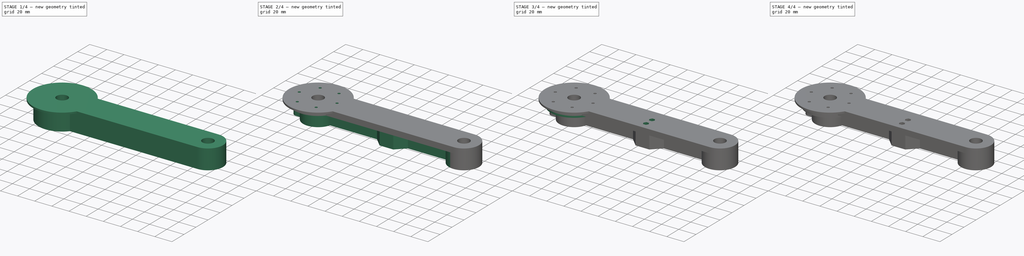
[diagram: build sequence overview — one tinted view per stage of 4, left to right]
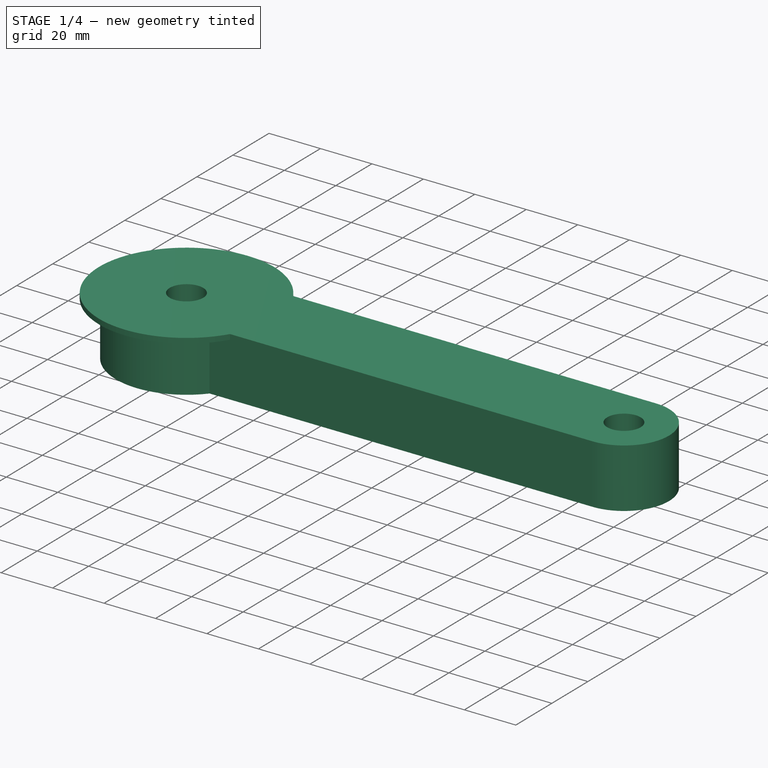
[diagram: stage 1 of 4 — iso view after this stage's code; geometry added in this stage tinted green]
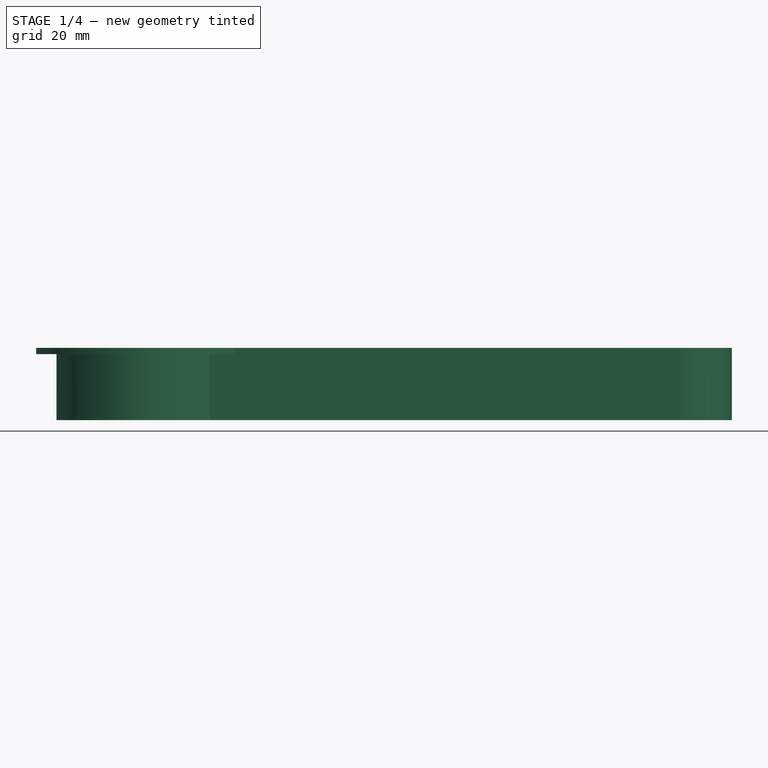
[diagram: stage 1 of 4 — front view after this stage's code; geometry added in this stage tinted green]
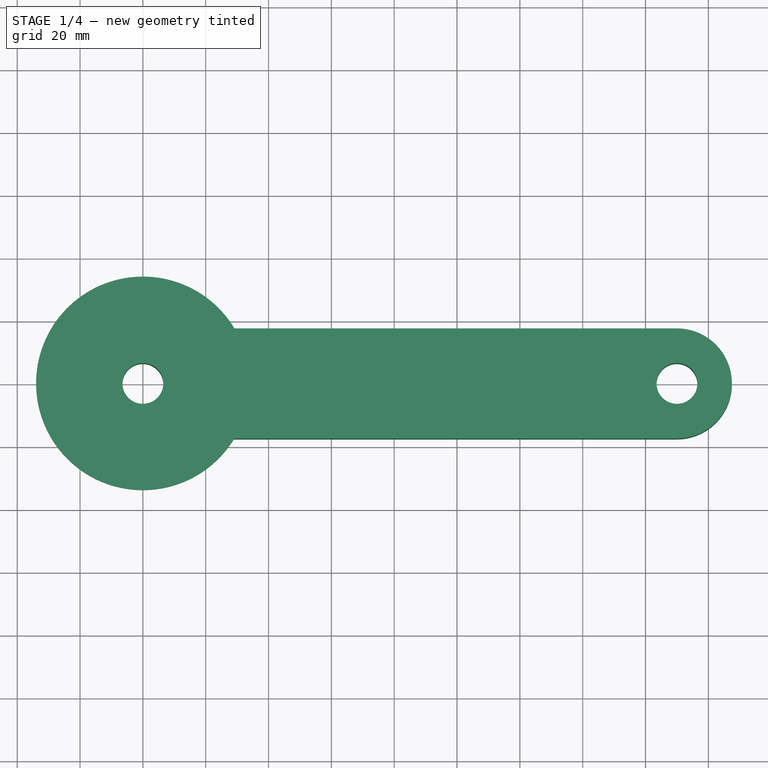
[diagram: stage 1 of 4 — top view after this stage's code; geometry added in this stage tinted green]
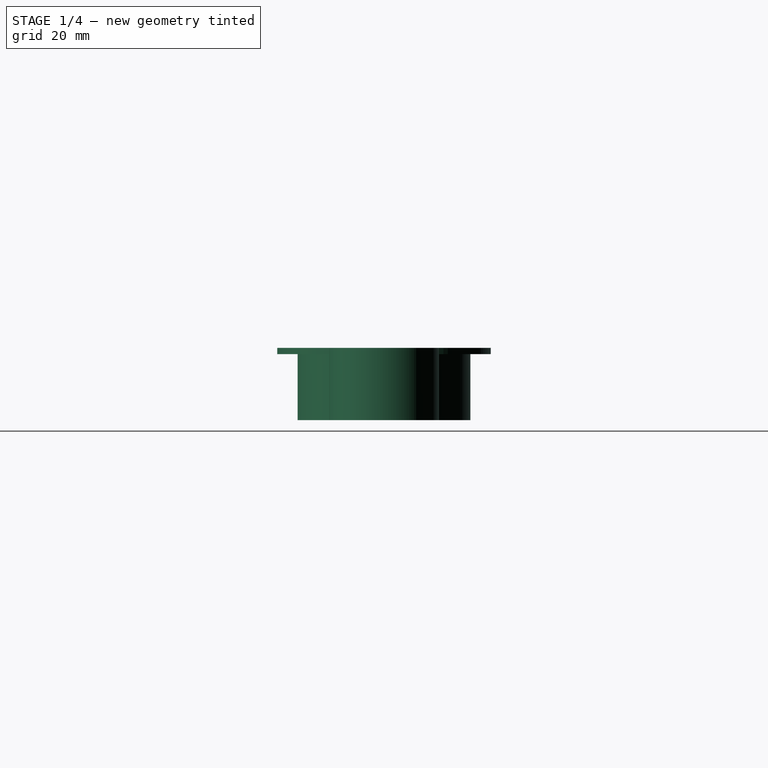
[diagram: stage 1 of 4 — right view after this stage's code; geometry added in this stage tinted green]
FCSTD DOCUMENT  (FreeCAD 0.20R29410 (Git))
Label: #11_Link1
License: All rights reserved
LicenseURL: http://en.wikipedia.org/wiki/All_rights_reserved
objects: Sketcher::SketchObject×8, PartDesign::Pocket×6, PartDesign::Pad×2, PartDesign::PolarPattern×1, PartDesign::Body×1, Part::FeaturePython×1
note: 27 computed .brp shape members not serialized (recipe doc carries the construction recipe); baked Part::Feature solids carry a one-line shape summary decoded from their .brp

FEATURE [Sketcher::SketchObject] Sketch
  FullyConstrained = true
  MapMode = 5
  Support = -> [XY_Plane]
  sketch-geometry (6):
    g0: ArcOfCircle CenterX=0 CenterY=0 CenterZ=0 NormalX=0 NormalY=0 NormalZ=1 AngleXU=0 Radius=34 StartAngle=0.540665 EndAngle=5.74252
    g1: Circle CenterX=170 CenterY=0 CenterZ=0 NormalX=0 NormalY=0 NormalZ=1 AngleXU=0 Radius=6.5
    g2: Circle CenterX=0 CenterY=0 CenterZ=0 NormalX=0 NormalY=0 NormalZ=1 AngleXU=0 Radius=6.5
    g3: ArcOfCircle CenterX=170 CenterY=0 CenterZ=0 NormalX=0 NormalY=0 NormalZ=1 AngleXU=0 Radius=17.5 StartAngle=4.71239 EndAngle=7.85398
    g4: LineSegment StartX=29.1505 StartY=-17.5 StartZ=0 EndX=170 EndY=-17.5 EndZ=0
    g5: LineSegment StartX=170 StartY=17.5 StartZ=0 EndX=29.1505 EndY=17.5 EndZ=0
  constraints (15):
    c: Coincident(g0,g-1)
    c: Diameter(g0) = 68
    c: PointOnObject(g1,g-1)
    c: Coincident(g2,g0)
    c: Diameter(g2) = 13
    c: Diameter(g1) = 13
    c: DistanceX(g0,g1) = 170
    c: Tangent(g4,g3) = -1.5708
    c: Tangent(g3,g5) = -1.5708
    c: Coincident(g3,g1)
    c: Diameter(g3) = 35
    c: Coincident(g0,g5)
    c: Coincident(g4,g0)
    c: Horizontal(g5)
    c: Horizontal(g4)
FEATURE [PartDesign::Pad] Pad
  Direction = (0,0,1)
  Length = 23
  Length2 = 10
  Profile = -> Sketch
  ReferenceAxis = -> Sketch [N_Axis]
  Type = 0
FEATURE [Sketcher::SketchObject] Sketch001
  ExternalGeometry = -> [Pad]
  FullyConstrained = true
  MapMode = 5
  Placement = pos=(0,0,0) rot=(1,0,0;3.14159rad)
  Support = -> [Pad]
  sketch-geometry (4):
    g0: ArcOfCircle CenterX=0 CenterY=0 CenterZ=0 NormalX=0 NormalY=0 NormalZ=1 AngleXU=0 Radius=27.5 StartAngle=0.689775 EndAngle=5.59341
    g1: LineSegment StartX=29.1505 StartY=17.5 StartZ=0 EndX=21.2132 EndY=17.5 EndZ=0
    g2: LineSegment StartX=29.1505 StartY=-17.5 StartZ=0 EndX=21.2132 EndY=-17.5 EndZ=0
    g3: ArcOfCircle CenterX=0 CenterY=0 CenterZ=0 NormalX=0 NormalY=0 NormalZ=1 AngleXU=0 Radius=34 StartAngle=0.540665 EndAngle=5.74252
  constraints (11):
    c: Coincident(g0,g-1)
    c: Diameter(g0) = 55
    c: Coincident(g1,g-3)
    c: Horizontal(g1)
    c: Coincident(g2,g-4)
    c: Horizontal(g2)
    c: Coincident(g0,g2)
    c: Coincident(g0,g1)
    c: Coincident(g3,g0)
    c: Coincident(g3,g2)
    c: Coincident(g3,g1)
FEATURE [PartDesign::Pocket] Pocket
  BaseFeature = -> Pad
  Direction = (0,0,1)
  Length = 21
  Length2 = 5
  Profile = -> Sketch001
  ReferenceAxis = -> Sketch001 [N_Axis]
  Type = 0
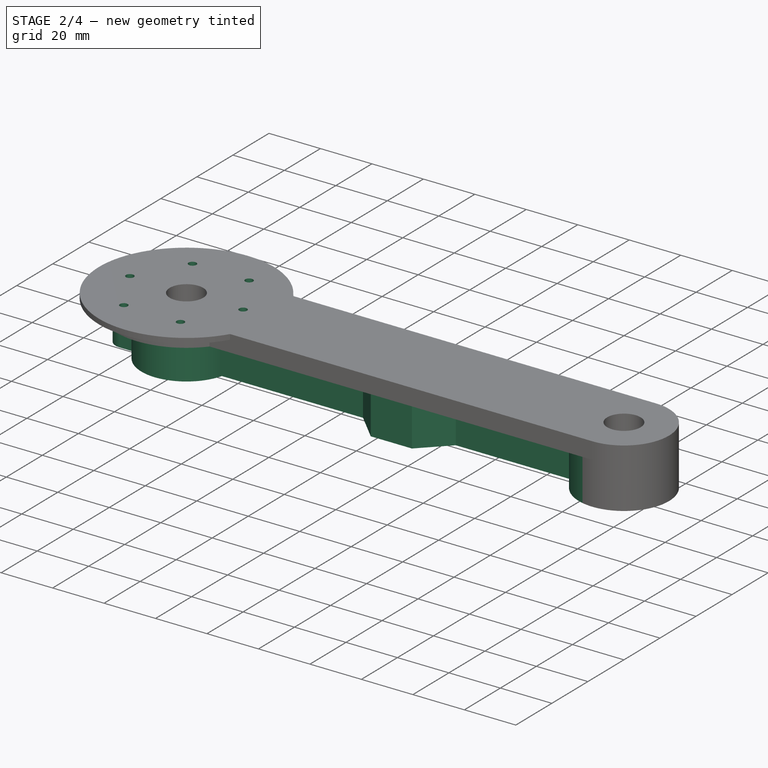
[diagram: stage 2 of 4 — iso view after this stage's code; geometry added in this stage tinted green]
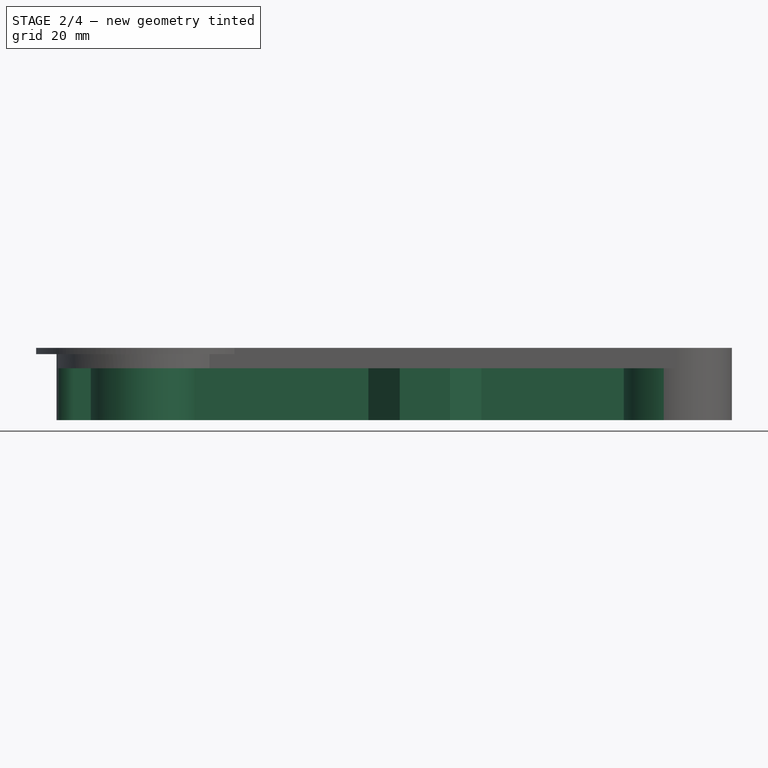
[diagram: stage 2 of 4 — front view after this stage's code; geometry added in this stage tinted green]
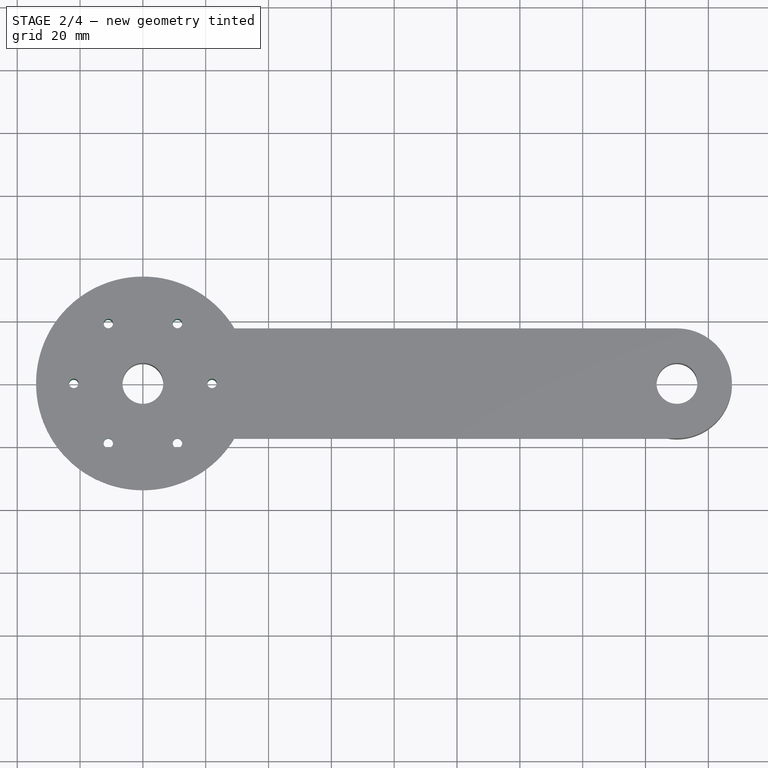
[diagram: stage 2 of 4 — top view after this stage's code; geometry added in this stage tinted green]
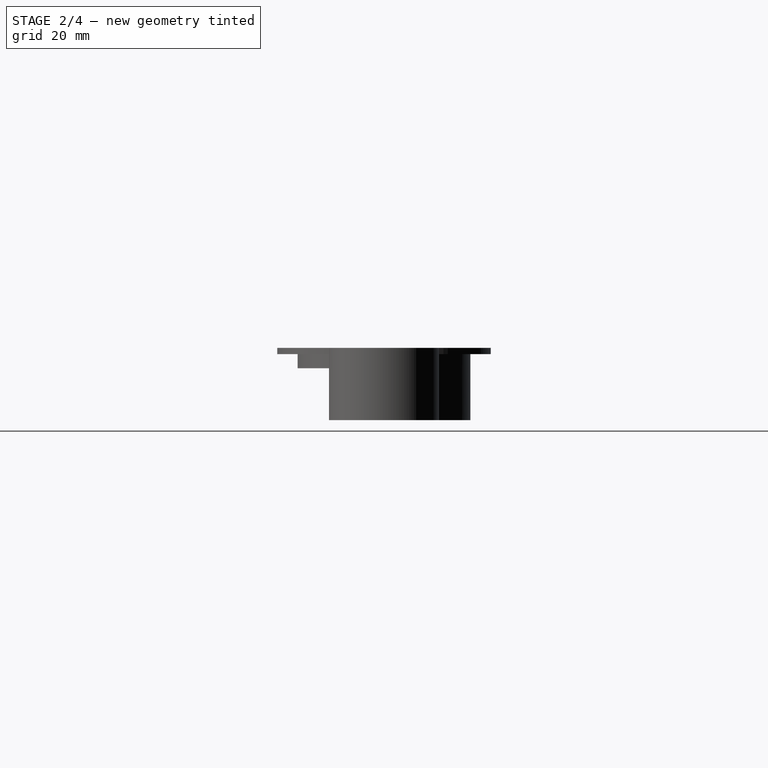
[diagram: stage 2 of 4 — right view after this stage's code; geometry added in this stage tinted green]
FEATURE [Sketcher::SketchObject] Sketch002
  FullyConstrained = true
  MapMode = 5
  Placement = pos=(0,0,0) rot=(1,0,0;3.14159rad)
  Support = -> [Pocket]
  sketch-geometry (1):
    g0: Circle CenterX=-22 CenterY=0 CenterZ=0 NormalX=0 NormalY=0 NormalZ=1 AngleXU=0 Radius=1.5
  constraints (3):
    c: PointOnObject(g0,g-1)
    c: Diameter(g0) = 3
    c: DistanceX(g0,g-1) = 22
FEATURE [PartDesign::Pocket] Pocket001
  BaseFeature = -> Pocket
  Direction = (0,0,1)
  Length = 30
  Length2 = 5
  Profile = -> Sketch002
  ReferenceAxis = -> Sketch002 [N_Axis]
  Type = 0
FEATURE [PartDesign::PolarPattern] PolarPattern
  Angle = 360
  Axis = -> Pocket001 [Edge19]
  BaseFeature = -> Pocket001
  Occurrences = 6
  Originals = -> [Pocket001]
FEATURE [Sketcher::SketchObject] Sketch003
  ExternalGeometry = -> [PolarPattern]
  FullyConstrained = true
  MapMode = 5
  Placement = pos=(0,0,0) rot=(1,0,0;3.14159rad)
  Support = -> [PolarPattern]
  sketch-geometry (11):
    g0: ArcOfCircle CenterX=0 CenterY=0 CenterZ=0 NormalX=0 NormalY=0 NormalZ=1 AngleXU=0 Radius=17.5 StartAngle=0.260064 EndAngle=2.82189
    g1: LineSegment StartX=16.9115 StartY=4.5 StartZ=0 EndX=71.762 EndY=4.5 EndZ=0
    g2: ArcOfCircle CenterX=170 CenterY=0 CenterZ=0 NormalX=0 NormalY=0 NormalZ=1 AngleXU=0 Radius=17.5 StartAngle=1.5708 EndAngle=2.88153
    g3: LineSegment StartX=153.088 StartY=4.5 StartZ=0 EndX=107.762 EndY=4.5 EndZ=0
    g4: LineSegment StartX=71.762 StartY=4.5 StartZ=0 EndX=81.762 EndY=14.5 EndZ=0
    g5: LineSegment StartX=81.762 StartY=14.5 StartZ=0 EndX=97.762 EndY=14.5 EndZ=0
    g6: LineSegment StartX=107.762 StartY=4.5 StartZ=0 EndX=97.762 EndY=14.5 EndZ=0
    g7: ArcOfCircle CenterX=-22 CenterY=0 CenterZ=0 NormalX=0 NormalY=0 NormalZ=1 AngleXU=0 Radius=5.5 StartAngle=1.5708 EndAngle=3.14159
    g8: LineSegment StartX=-22 StartY=5.5 StartZ=0 EndX=-16.6132 EndY=5.5 EndZ=0
    g9: ArcOfCircle CenterX=0 CenterY=0 CenterZ=0 NormalX=0 NormalY=0 NormalZ=1 AngleXU=0 Radius=27.5 StartAngle=0.689775 EndAngle=3.14159
    g10: LineSegment StartX=21.2132 StartY=17.5 StartZ=0 EndX=170 EndY=17.5 EndZ=0
  constraints (30):
    c: Coincident(g0,g-1)
    c: Diameter(g0) = 35
    c: Horizontal(g1)
    c: DistanceY(g-3,g1) = 22
    c: Coincident(g2,g-4)
    c: Horizontal(g3)
    c: DistanceY(g-3,g3) = 22
    c: Coincident(g4,g1)
    c: Coincident(g5,g4)
    c: Horizontal(g5)
    c: Coincident(g6,g3)
    c: Coincident(g6,g5)
    c: DistanceY(g-3,g5) = 32
    c: Equal(g6,g4)
    c: Coincident(g2,g3)
    c: Distance(g5) = 16
    c: Distance(g1,g3) = 36
    c: DistanceX(g0,g4) = 81.762
    c: Diameter(g7) = 11
    c: Horizontal(g8)
    c: Coincident(g7,g-5)
    c: Tangent(g7,g8) = 1.5708
    c: Coincident(g0,g8)
    c: Coincident(g0,g1)
    c: Coincident(g9,g0)
    c: Tangent(g7,g9) = -1.5708
    c: Horizontal(g10)
    c: Coincident(g9,g10)
    c: Tangent(g2,g10) = 1.5708
    c: Diameter(g2) = 35
FEATURE [PartDesign::Pocket] Pocket002
  BaseFeature = -> PolarPattern
  Direction = (0,0,1)
  Length = 16.5
  Length2 = 5
  Profile = -> Sketch003
  ReferenceAxis = -> Sketch003 [N_Axis]
  Type = 0
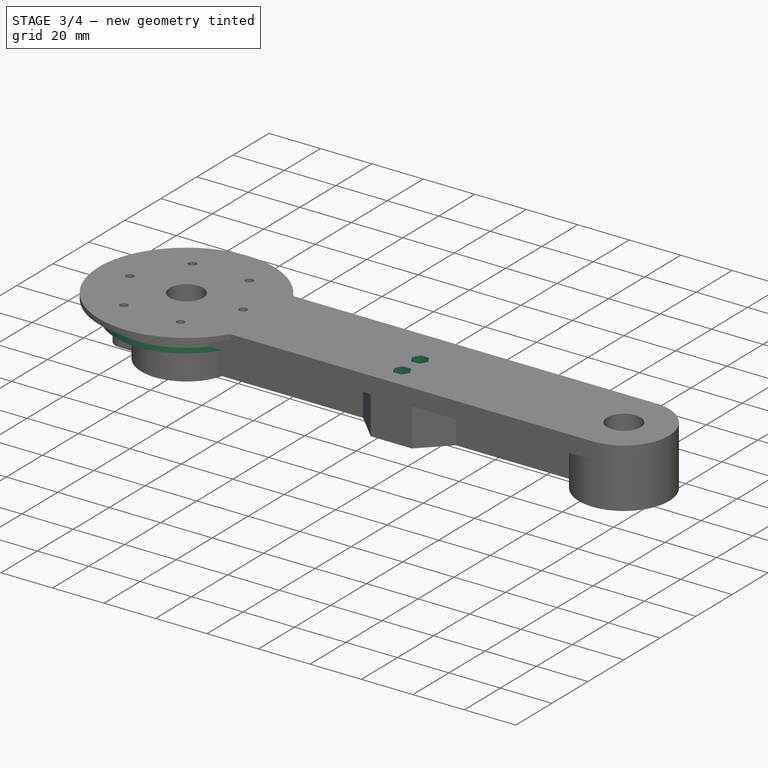
[diagram: stage 3 of 4 — iso view after this stage's code; geometry added in this stage tinted green]
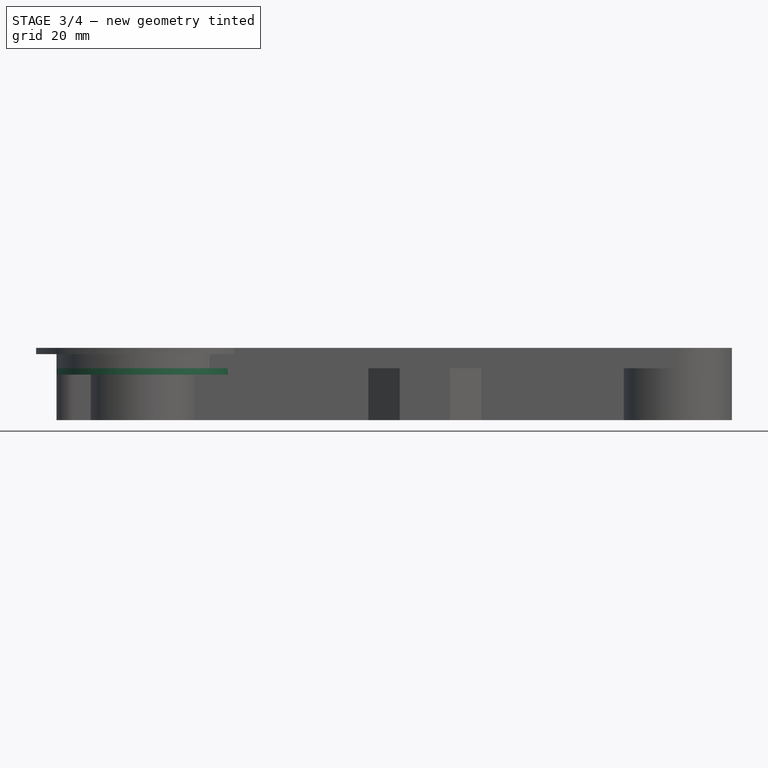
[diagram: stage 3 of 4 — front view after this stage's code; geometry added in this stage tinted green]
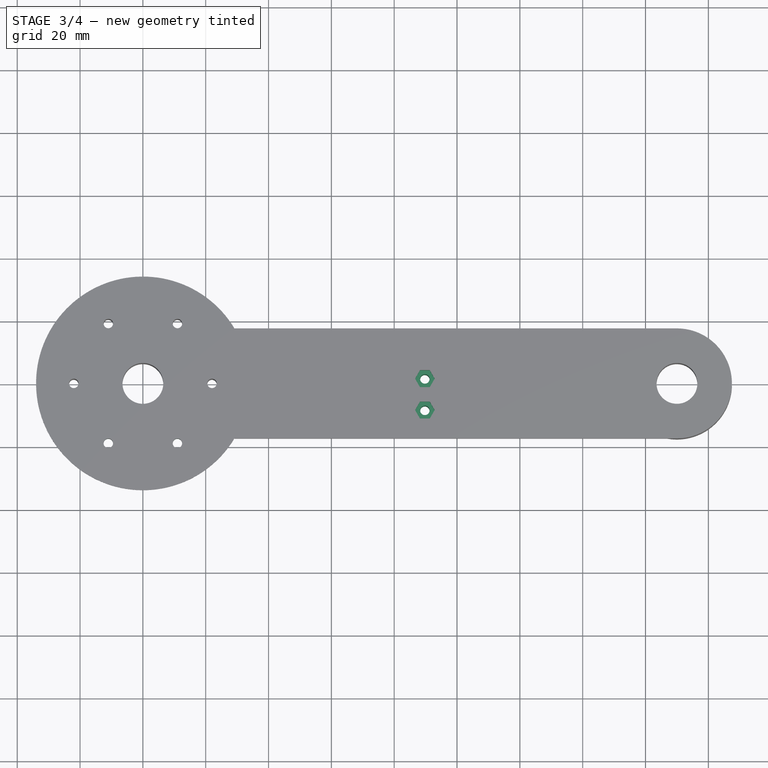
[diagram: stage 3 of 4 — top view after this stage's code; geometry added in this stage tinted green]
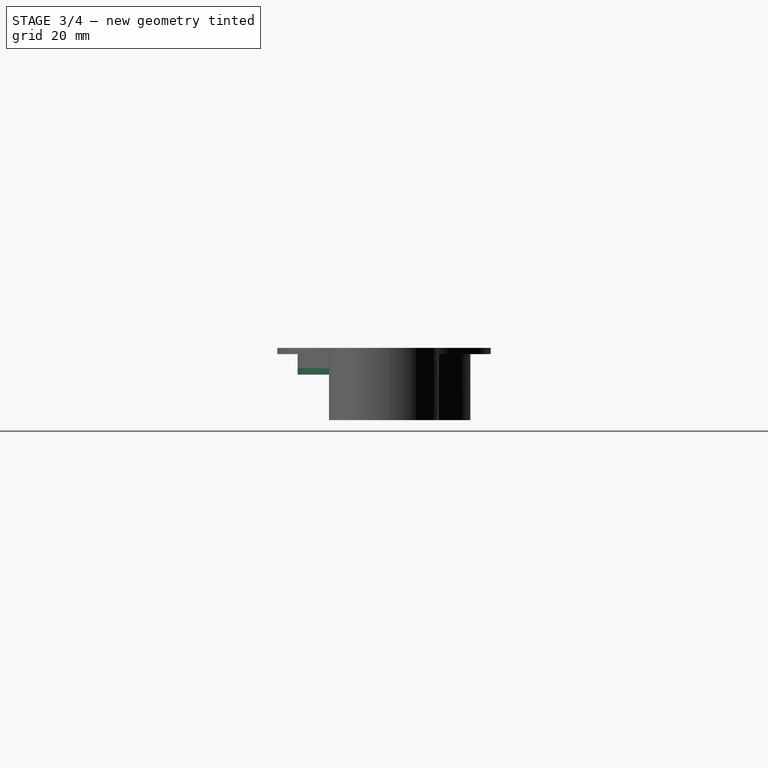
[diagram: stage 3 of 4 — right view after this stage's code; geometry added in this stage tinted green]
FEATURE [Sketcher::SketchObject] Sketch004
  ExternalGeometry = -> [Pocket002]
  FullyConstrained = true
  MapMode = 5
  Placement = pos=(0,0,16.5) rot=(1,0,0;3.14159rad)
  Support = -> [Pocket002]
  sketch-geometry (7):
    g0: Circle CenterX=-11 CenterY=19.0526 CenterZ=0 NormalX=0 NormalY=0 NormalZ=1 AngleXU=0 Radius=1.5
    g1: Circle CenterX=11 CenterY=19.0526 CenterZ=0 NormalX=0 NormalY=0 NormalZ=1 AngleXU=0 Radius=1.5
    g2: ArcOfCircle CenterX=0 CenterY=0 CenterZ=0 NormalX=0 NormalY=0 NormalZ=1 AngleXU=0 Radius=17.5 StartAngle=0.260064 EndAngle=2.82189
    g3: ArcOfCircle CenterX=-22 CenterY=0 CenterZ=0 NormalX=0 NormalY=0 NormalZ=1 AngleXU=0 Radius=5.5 StartAngle=1.57079 EndAngle=3.14159
    g4: ArcOfCircle CenterX=0 CenterY=0 CenterZ=0 NormalX=0 NormalY=0 NormalZ=1 AngleXU=0 Radius=27.5 StartAngle=0.164376 EndAngle=3.14159
    g5: LineSegment StartX=16.9115 StartY=4.5 StartZ=0 EndX=27.1293 EndY=4.5 EndZ=0
    g6: LineSegment StartX=-22 StartY=5.5 StartZ=0 EndX=-16.6132 EndY=5.5 EndZ=0
  constraints (18):
    c: Coincident(g0,g-4)
    c: Coincident(g1,g-3)
    c: PointOnObject(g-6,g2)
    c: Coincident(g3,g-5)
    c: Diameter(g1) = 3
    c: Diameter(g0) = 3
    c: Coincident(g2,g-6)
    c: Coincident(g4,g2)
    c: Coincident(g5,g-6)
    c: Horizontal(g5)
    c: Coincident(g4,g5)
    c: PointOnObject(g2,g5)
    c: Tangent(g3,g4) = -1.5708
    c: Coincident(g6,g3)
    c: Coincident(g6,g-6)
    c: Horizontal(g6)
    c: PointOnObject(g2,g6)
    c: Diameter(g4) = 55
FEATURE [PartDesign::Pad] Pad001
  BaseFeature = -> Pocket002
  Direction = (0,0,-1)
  Length = 2
  Length2 = 10
  Profile = -> Sketch004
  ReferenceAxis = -> Sketch004 [N_Axis]
  Type = 0
FEATURE [Sketcher::SketchObject] Sketch005
  ExternalGeometry = -> [Pad001]
  FullyConstrained = true
  MapMode = 5
  Placement = pos=(0,0,0) rot=(1,0,0;3.14159rad)
  Support = -> [Pad001]
  sketch-geometry (3):
    g0: LineSegment StartX=89.762 StartY=14.5 StartZ=0 EndX=89.762 EndY=-5.5 EndZ=0
    g1: Circle CenterX=89.762 CenterY=8.5 CenterZ=0 NormalX=0 NormalY=0 NormalZ=1 AngleXU=0 Radius=1.5
    g2: Circle CenterX=89.762 CenterY=-1.5 CenterZ=0 NormalX=0 NormalY=0 NormalZ=1 AngleXU=0 Radius=1.5
  constraints (9):
    c: Vertical(g0)
    c: Symmetric(g-3,g-3,g0)
    c: PointOnObject(g1,g0)
    c: PointOnObject(g2,g0)
    c: Distance(g1,g0) = 6
    c: Distance(g2,g1) = 10
    c: Diameter(g2) = 3
    c: Diameter(g1) = 3
    c: Distance(g0) = 20
FEATURE [PartDesign::Pocket] Pocket003
  BaseFeature = -> Pad001
  Direction = (0,0,1)
  Length = 30
  Length2 = 5
  Profile = -> Sketch005
  ReferenceAxis = -> Sketch005 [N_Axis]
  Type = 0
FEATURE [Sketcher::SketchObject] Sketch006
  ExternalGeometry = -> [Pocket003]
  FullyConstrained = true
  MapMode = 5
  Placement = pos=(0,0,23) rot=(0,0,1;0rad)
  Support = -> [Pocket003]
  sketch-geometry (14):
    g0: LineSegment StartX=88.2032 StartY=-1.2 StartZ=0 EndX=91.3208 EndY=-1.2 EndZ=0
    g1: LineSegment StartX=91.3208 StartY=-1.2 StartZ=0 EndX=92.8797 EndY=1.5 EndZ=0
    g2: LineSegment StartX=92.8797 StartY=1.5 StartZ=0 EndX=91.3208 EndY=4.2 EndZ=0
    g3: LineSegment StartX=91.3208 StartY=4.2 StartZ=0 EndX=88.2032 EndY=4.2 EndZ=0
    g4: LineSegment StartX=88.2032 StartY=4.2 StartZ=0 EndX=86.6443 EndY=1.5 EndZ=0
    g5: LineSegment StartX=86.6443 StartY=1.5 StartZ=0 EndX=88.2032 EndY=-1.2 EndZ=0
    g6: Circle CenterX=89.762 CenterY=1.5 CenterZ=0 NormalX=0 NormalY=0 NormalZ=1 AngleXU=0 Radius=3.11769
    g7: LineSegment StartX=91.3208 StartY=-11.2 StartZ=0 EndX=92.8797 EndY=-8.5 EndZ=0
    g8: LineSegment StartX=92.8797 StartY=-8.5 StartZ=0 EndX=91.3208 EndY=-5.8 EndZ=0
    g9: LineSegment StartX=91.3208 StartY=-5.8 StartZ=0 EndX=88.2032 EndY=-5.8 EndZ=0
    g10: LineSegment StartX=88.2032 StartY=-5.8 StartZ=0 EndX=86.6443 EndY=-8.5 EndZ=0
    g11: LineSegment StartX=86.6443 StartY=-8.5 StartZ=0 EndX=88.2032 EndY=-11.2 EndZ=0
    g12: LineSegment StartX=88.2032 StartY=-11.2 StartZ=0 EndX=91.3208 EndY=-11.2 EndZ=0
    g13: Circle CenterX=89.762 CenterY=-8.5 CenterZ=0 NormalX=0 NormalY=0 NormalZ=1 AngleXU=0 Radius=3.11769
  constraints (32):
    c: Coincident(g0,g1)
    c: Coincident(g1,g2)
    c: Coincident(g2,g3)
    c: Coincident(g3,g4)
    c: Coincident(g4,g5)
    c: Coincident(g5,g0)
    c: Equal(g0, g1-g5) x5
    c: PointOnObject(g0,g6)
    c: PointOnObject(g1,g6)
    c: PointOnObject(g2,g6)
    c: PointOnObject(g3,g6)
    c: PointOnObject(g4,g6)
    c: PointOnObject(g5,g6)
    c: Coincident(g6,g-3)
    c: Coincident(g7,g8)
    c: Coincident(g8,g9)
    c: Coincident(g9,g10)
    c: Coincident(g10,g11)
    c: Coincident(g11,g12)
    c: Coincident(g12,g7)
    c: Equal(g7, g8-g12) x5
    c: PointOnObject(g7,g13)
    c: PointOnObject(g8,g13)
    c: PointOnObject(g9,g13)
    c: PointOnObject(g10,g13)
    c: PointOnObject(g11,g13)
    c: PointOnObject(g12,g13)
    c: Coincident(g13,g-4)
    c: Parallel(g0,g9)
    c: Parallel(g-5,g12)
    c: Equal(g9,g0)
    c: Distance(g10,g8) = 5.4
FEATURE [PartDesign::Pocket] Pocket004
  BaseFeature = -> Pocket003
  Direction = (0,0,-1)
  Length = 5
  Length2 = 5
  Profile = -> Sketch006
  ReferenceAxis = -> Sketch006 [N_Axis]
  Type = 0
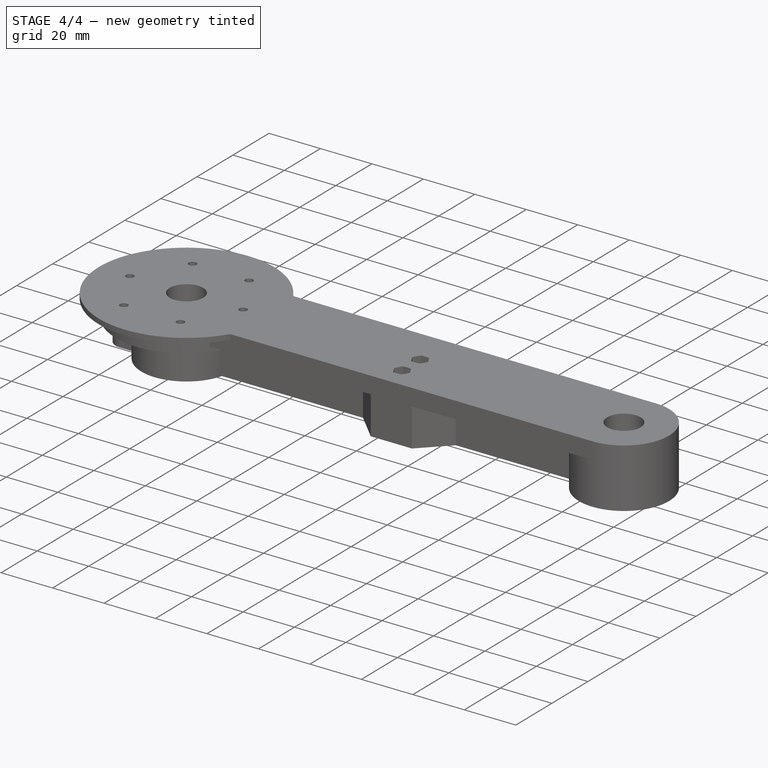
[diagram: stage 4 of 4 — iso view after this stage's code; geometry added in this stage tinted green]
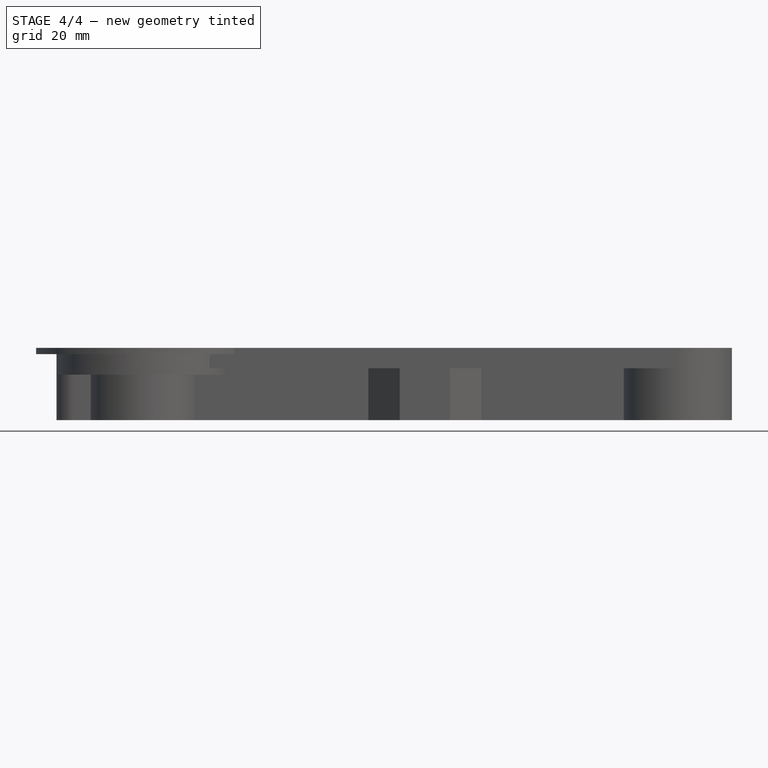
[diagram: stage 4 of 4 — front view after this stage's code; geometry added in this stage tinted green]
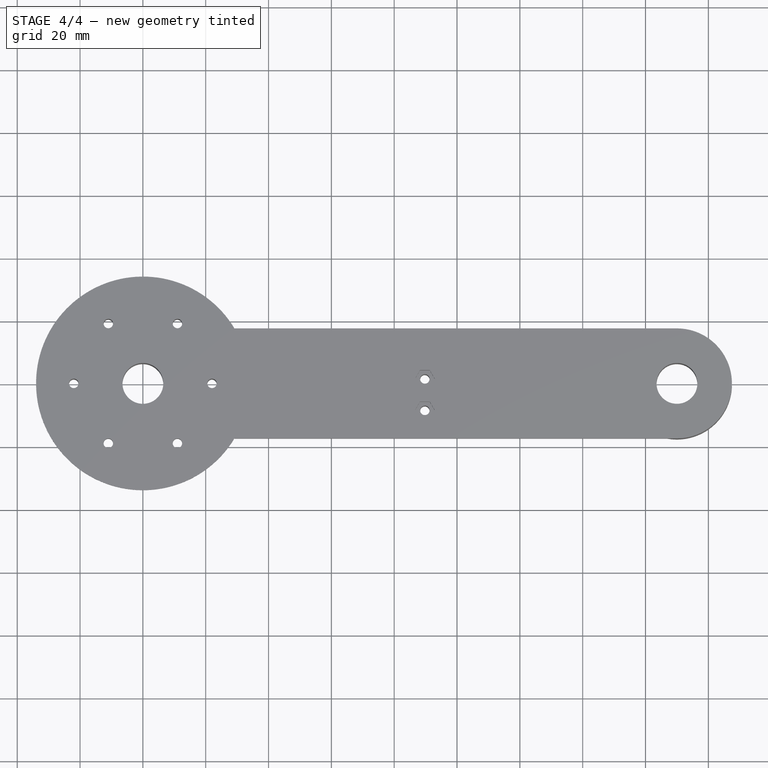
[diagram: stage 4 of 4 — top view after this stage's code; geometry added in this stage tinted green]
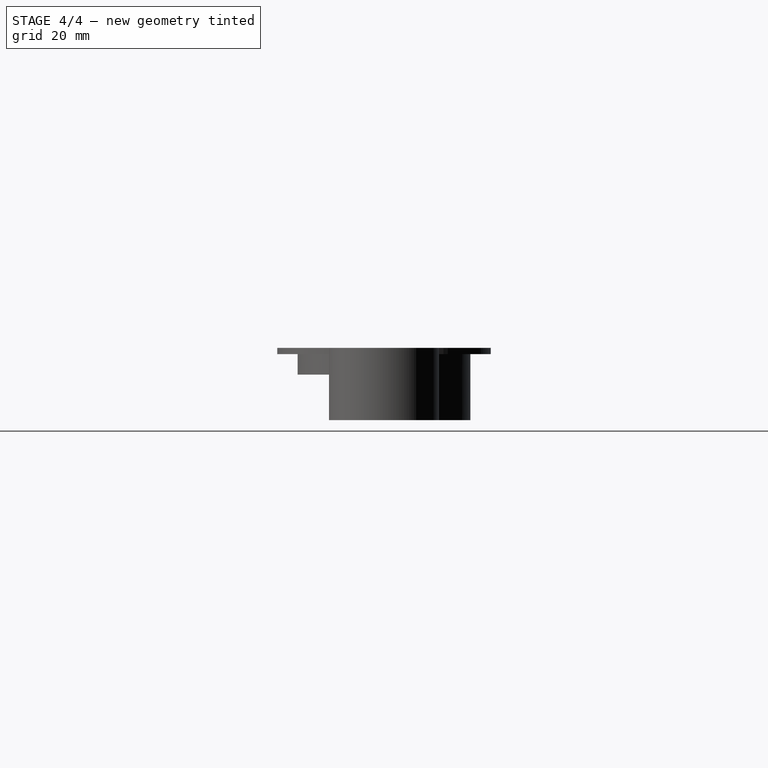
[diagram: stage 4 of 4 — right view after this stage's code; geometry added in this stage tinted green]
FEATURE [Sketcher::SketchObject] Sketch007
  ExternalGeometry = -> [Pocket004]
  FullyConstrained = true
  MapMode = 5
  Placement = pos=(0,0,0) rot=(1,0,0;3.14159rad)
  Support = -> [Pocket004]
  sketch-geometry (4):
    g0: Circle CenterX=22 CenterY=0 CenterZ=0 NormalX=0 NormalY=0 NormalZ=1 AngleXU=0 Radius=2.75
    g1: Circle CenterX=11 CenterY=-19.0526 CenterZ=0 NormalX=0 NormalY=0 NormalZ=1 AngleXU=0 Radius=2.75
    g2: Circle CenterX=-11 CenterY=-19.0526 CenterZ=0 NormalX=0 NormalY=0 NormalZ=1 AngleXU=0 Radius=2.75
    g3: Circle CenterX=-22 CenterY=0 CenterZ=0 NormalX=0 NormalY=0 NormalZ=1 AngleXU=0 Radius=2.75
  constraints (8):
    c: Coincident(g0,g-3)
    c: Coincident(g1,g-4)
    c: Coincident(g2,g-5)
    c: Coincident(g3,g-6)
    c: Diameter(g0) = 5.5
    c: Equal(g0,g1)
    c: Equal(g2,g3)
    c: Equal(g1,g2)
FEATURE [PartDesign::Pocket] Pocket005
  BaseFeature = -> Pocket004
  Direction = (0,0,1)
  Length = 3
  Length2 = 5
  Profile = -> Sketch007
  ReferenceAxis = -> Sketch007 [N_Axis]
  Type = 0
FEATURE [PartDesign::Body] Body
  Group = -> [Sketch,Pad,Sketch001,Pocket,Sketch002,Pocket001,PolarPattern,Sketch003,Pocket002,Sketch004,Pad001,Sketch005,Pocket003,Sketch006,Pocket004,Sketch007,Pocket005]
  Origin = -> Origin
  Tip = -> Pocket005
FEATURE [Part::FeaturePython] refine  label="RefinedGeometry"  # WARN: FeaturePython — macro-defined, semantics opaque (R4)
  Base = -> Pocket005
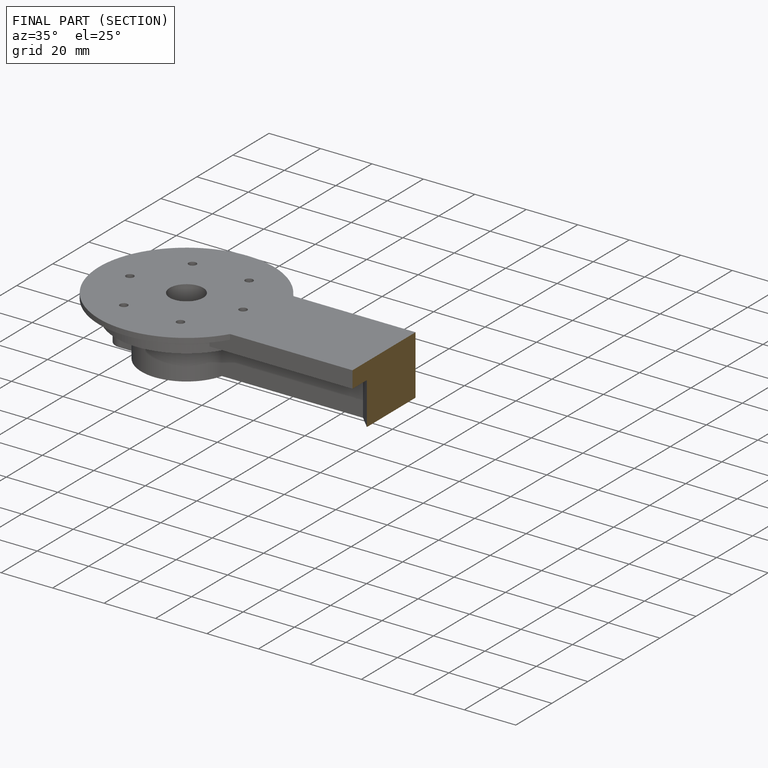
[diagram: finished part — half-section view (interior)]
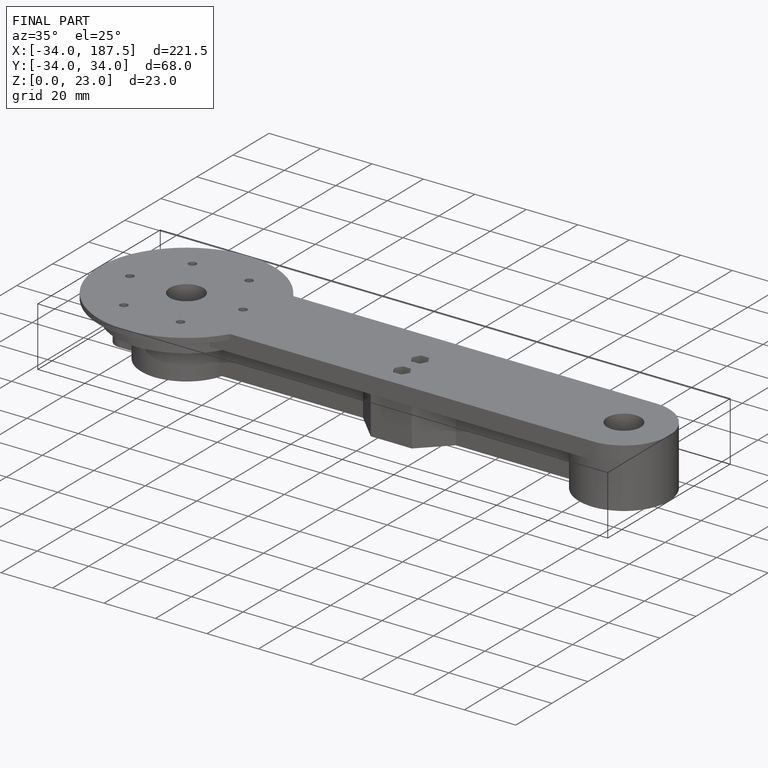
[diagram: finished part — iso view with bounding-box wireframe]
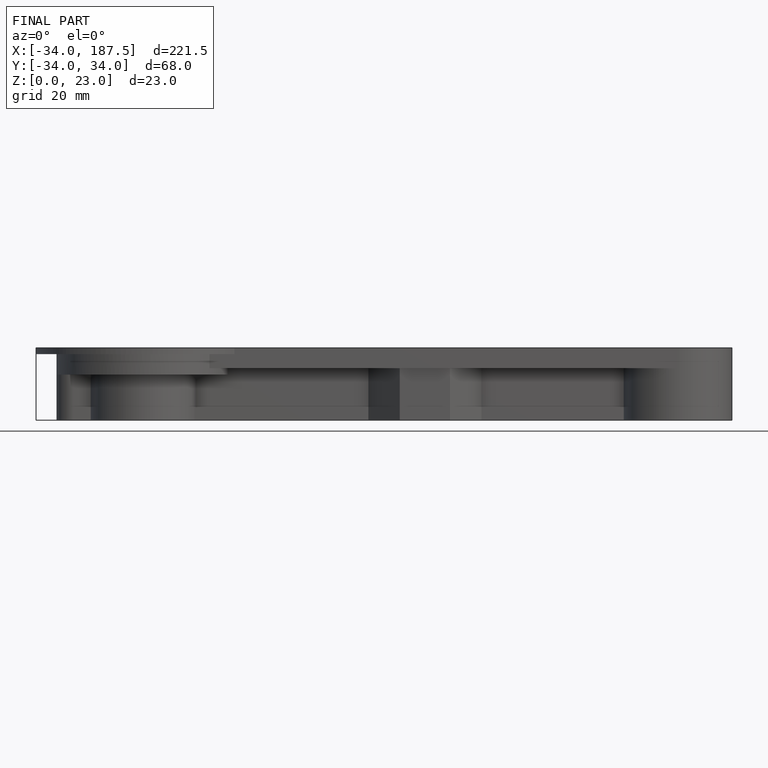
[diagram: finished part — front view with bounding-box wireframe]
